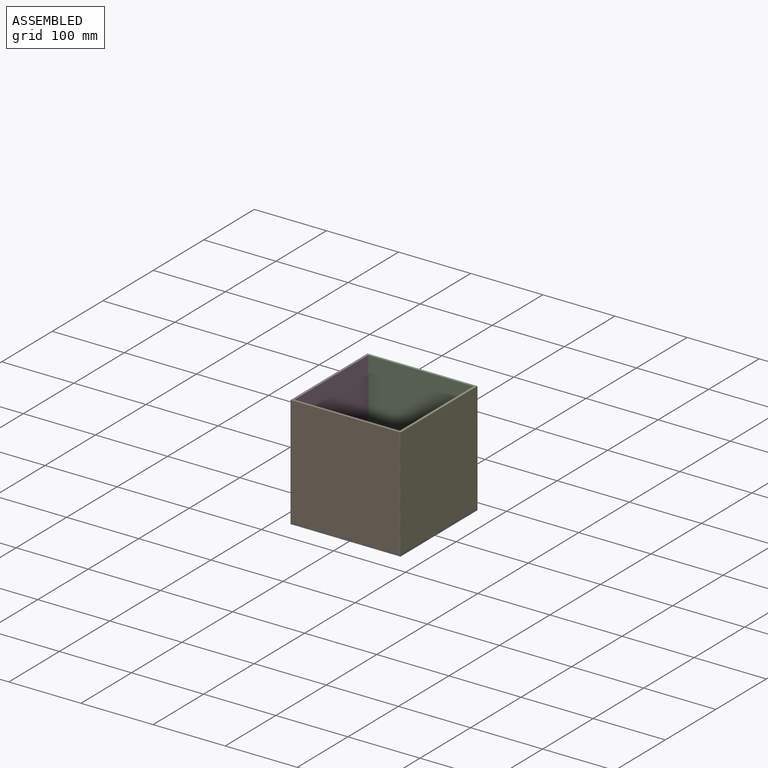
[diagram: assembled view]
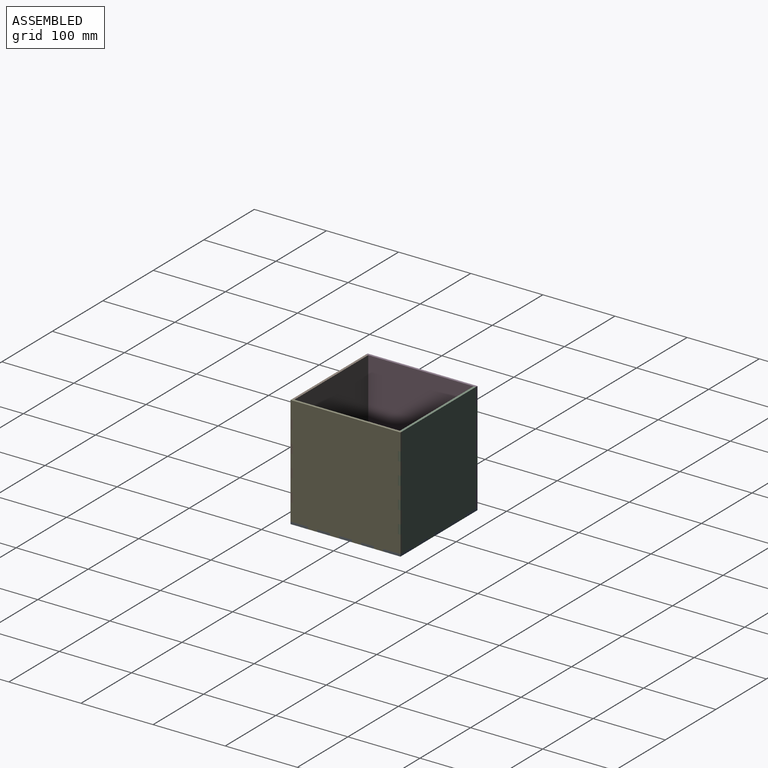
[diagram: assembled view, second angle]
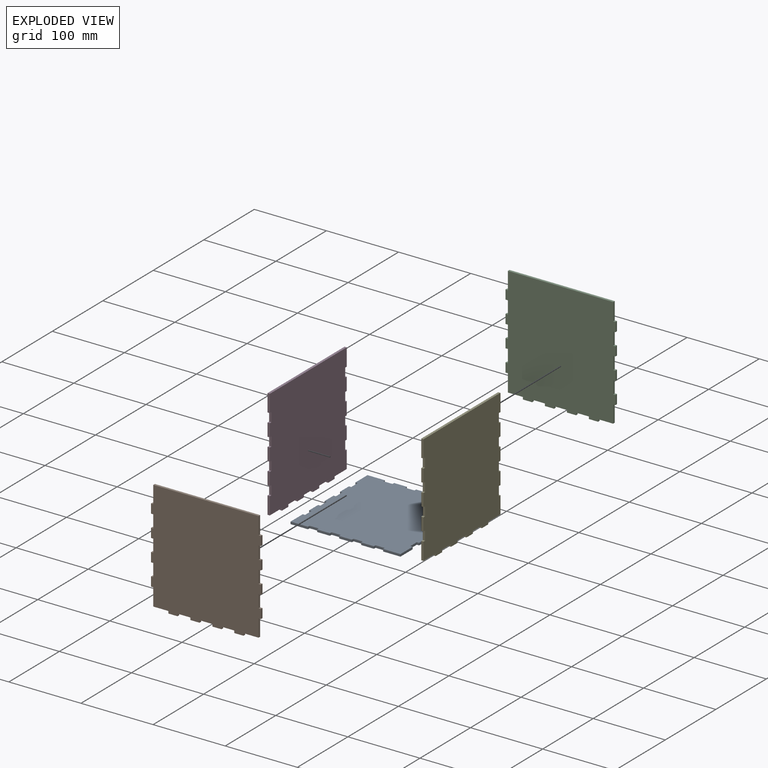
[diagram: exploded view]
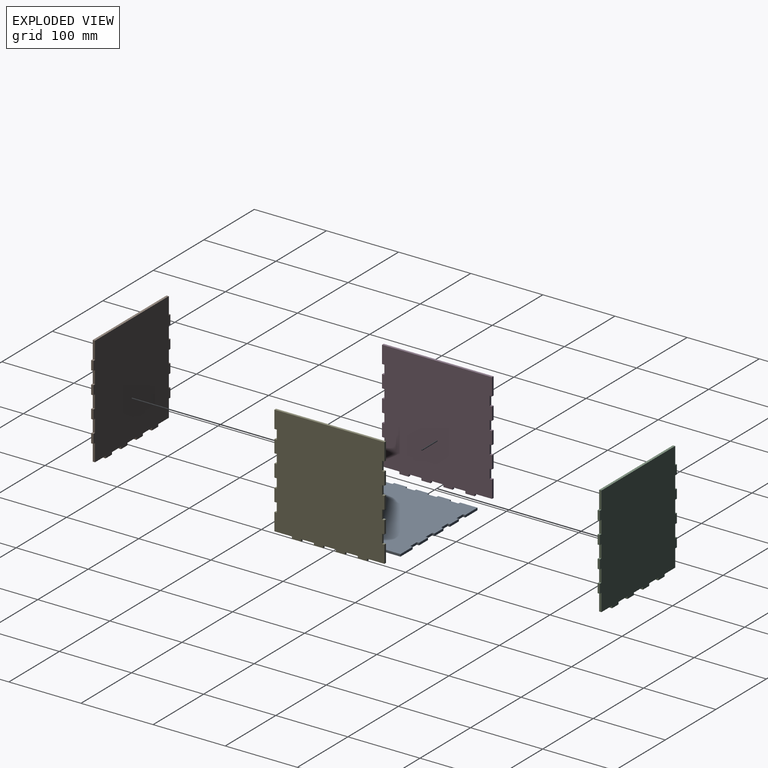
[diagram: exploded view, second angle]
ASSEMBLY  parts=5 mates=14
PART A: 70 faces, bbox 152.4x152.4x3.2 mm
  f0: plane 3.18x3.18mm, normal (0,-1,0), area 10.1mm2, adj f1,f67,f68,f69
  f1: plane 17.78x3.18mm, normal (1,0,0), area 56.5mm2, adj f0,f2,f68,f69
  f2: plane 3.18x3.18mm, normal (0,1,0), area 10.1mm2, adj f1,f3,f68,f69
  f3: plane 12.7x3.18mm, normal (1,0,0), area 40.3mm2, adj f2,f4,f68,f69
  f4: plane 3.18x3.18mm, normal (0,-1,0), area 10.1mm2, adj f3,f5,f68,f69
  f5: plane 17.78x3.18mm, normal (1,0,0), area 56.5mm2, adj f4,f6,f68,f69
  f6: plane 3.18x3.18mm, normal (0,1,0), area 10.1mm2, adj f5,f7,f68,f69
  f7: plane 12.7x3.18mm, normal (1,0,0), area 40.3mm2, adj f6,f8,f68,f69
  f8: plane 3.18x3.18mm, normal (0,-1,0), area 10.1mm2, adj f7,f9,f68,f69
  f9: plane 24.13x3.18mm, normal (1,0,0), area 76.6mm2, adj f8,f10,f68,f69
  f10: plane 24.13x3.18mm, normal (0,1,0), area 76.6mm2, adj f9,f11,f68,f69
  f11: plane 3.18x3.18mm, normal (-1,0,0), area 10.1mm2, adj f10,f12,f68,f69
  f12: plane 12.7x3.18mm, normal (0,1,0), area 40.3mm2, adj f11,f13,f68,f69
  f13: plane 3.18x3.18mm, normal (1,0,0), area 10.1mm2, adj f12,f14,f68,f69
  f14: plane 17.78x3.18mm, normal (0,1,0), area 56.5mm2, adj f13,f15,f68,f69
  f15: plane 3.18x3.18mm, normal (-1,0,0), area 10.1mm2, adj f14,f16,f68,f69
  f16: plane 12.7x3.18mm, normal (0,1,0), area 40.3mm2, adj f15,f17,f68,f69
  f17: plane 3.18x3.18mm, normal (1,0,0), area 10.1mm2, adj f16,f18,f68,f69
  f18: plane 17.78x3.18mm, normal (0,1,0), area 56.5mm2, adj f17,f19,f68,f69
  f19: plane 3.18x3.18mm, normal (-1,0,0), area 10.1mm2, adj f18,f20,f68,f69
  f20: plane 12.7x3.18mm, normal (0,1,0), area 40.3mm2, adj f19,f21,f68,f69
  f21: plane 3.18x3.18mm, normal (1,0,0), area 10.1mm2, adj f20,f22,f68,f69
  f22: plane 17.78x3.18mm, normal (0,1,0), area 56.5mm2, adj f21,f23,f68,f69
  f23: plane 3.18x3.18mm, normal (-1,0,0), area 10.1mm2, adj f22,f24,f68,f69
  f24: plane 12.7x3.18mm, normal (0,1,0), area 40.3mm2, adj f23,f25,f68,f69
  f25: plane 3.18x3.18mm, normal (1,0,0), area 10.1mm2, adj f24,f26,f68,f69
  f26: plane 24.13x3.18mm, normal (0,1,0), area 76.6mm2, adj f25,f27,f68,f69
  f27: plane 24.13x3.18mm, normal (-1,0,0), area 76.6mm2, adj f26,f28,f68,f69
  f28: plane 3.18x3.18mm, normal (0,-1,0), area 10.1mm2, adj f27,f29,f68,f69
  f29: plane 12.7x3.18mm, normal (-1,0,0), area 40.3mm2, adj f28,f30,f68,f69
  f30: plane 3.18x3.18mm, normal (0,1,0), area 10.1mm2, adj f29,f31,f68,f69
  f31: plane 17.78x3.18mm, normal (-1,0,0), area 56.5mm2, adj f30,f32,f68,f69
  f32: plane 3.18x3.18mm, normal (0,-1,0), area 10.1mm2, adj f31,f33,f68,f69
  f33: plane 12.7x3.18mm, normal (-1,0,0), area 40.3mm2, adj f32,f34,f68,f69
  f34: plane 3.18x3.18mm, normal (0,1,0), area 10.1mm2, adj f33,f35,f68,f69
  f35: plane 17.78x3.18mm, normal (-1,0,0), area 56.5mm2, adj f34,f36,f68,f69
  f36: plane 3.18x3.18mm, normal (0,-1,0), area 10.1mm2, adj f35,f37,f68,f69
  f37: plane 12.7x3.18mm, normal (-1,0,0), area 40.3mm2, adj f36,f38,f68,f69
  f38: plane 3.18x3.18mm, normal (0,1,0), area 10.1mm2, adj f37,f39,f68,f69
  f39: plane 17.78x3.18mm, normal (-1,0,0), area 56.5mm2, adj f38,f40,f68,f69
  f40: plane 3.18x3.18mm, normal (0,-1,0), area 10.1mm2, adj f39,f41,f68,f69
  f41: plane 12.7x3.18mm, normal (-1,0,0), area 40.3mm2, adj f40,f42,f68,f69
  f42: plane 3.18x3.18mm, normal (0,1,0), area 10.1mm2, adj f41,f43,f68,f69
  f43: plane 24.13x3.18mm, normal (-1,0,0), area 76.6mm2, adj f42,f44,f68,f69
  f44: plane 24.13x3.18mm, normal (0,-1,0), area 76.6mm2, adj f43,f45,f68,f69
  f45: plane 3.18x3.18mm, normal (1,0,0), area 10.1mm2, adj f44,f46,f68,f69
  f46: plane 12.7x3.18mm, normal (0,-1,0), area 40.3mm2, adj f45,f47,f68,f69
  f47: plane 3.18x3.18mm, normal (-1,0,0), area 10.1mm2, adj f46,f48,f68,f69
  f48: plane 17.78x3.18mm, normal (0,-1,0), area 56.5mm2, adj f47,f49,f68,f69
  f49: plane 3.18x3.18mm, normal (1,0,0), area 10.1mm2, adj f48,f50,f68,f69
  f50: plane 12.7x3.18mm, normal (0,-1,0), area 40.3mm2, adj f49,f51,f68,f69
  f51: plane 3.18x3.18mm, normal (-1,0,0), area 10.1mm2, adj f50,f52,f68,f69
  f52: plane 17.78x3.18mm, normal (0,-1,0), area 56.5mm2, adj f51,f53,f68,f69
  f53: plane 3.18x3.18mm, normal (1,0,0), area 10.1mm2, adj f52,f54,f68,f69
  f54: plane 12.7x3.18mm, normal (0,-1,0), area 40.3mm2, adj f53,f55,f68,f69
  f55: plane 3.18x3.18mm, normal (-1,0,0), area 10.1mm2, adj f54,f56,f68,f69
  f56: plane 17.78x3.18mm, normal (0,-1,0), area 56.5mm2, adj f55,f57,f68,f69
  f57: plane 3.18x3.18mm, normal (1,0,0), area 10.1mm2, adj f56,f58,f68,f69
  f58: plane 12.7x3.18mm, normal (0,-1,0), area 40.3mm2, adj f57,f59,f68,f69
  f59: plane 3.18x3.18mm, normal (-1,0,0), area 10.1mm2, adj f58,f60,f68,f69
  f60: plane 24.13x3.18mm, normal (0,-1,0), area 76.6mm2, adj f59,f61,f68,f69
  f61: plane 24.13x3.18mm, normal (1,0,0), area 76.6mm2, adj f60,f62,f68,f69
  f62: plane 3.18x3.18mm, normal (0,1,0), area 10.1mm2, adj f61,f63,f68,f69
  f63: plane 12.7x3.18mm, normal (1,0,0), area 40.3mm2, adj f62,f64,f68,f69
  f64: plane 3.18x3.18mm, normal (0,-1,0), area 10.1mm2, adj f63,f65,f68,f69
  f65: plane 17.78x3.18mm, normal (1,0,0), area 56.5mm2, adj f64,f66,f68,f69
  f66: plane 3.18x3.18mm, normal (0,1,0), area 10.1mm2, adj f65,f67,f68,f69
  f67: plane 12.7x3.18mm, normal (1,0,0), area 40.3mm2, adj f0,f66,f68,f69
  f68: plane 152.4x152.4mm, normal (0,0,1), area 22580.6mm2, adj f0,f1,f2,f3,f4,f5,f6,f7
  f69: plane 152.4x152.4mm, normal (0,0,-1), area 22580.6mm2, adj f0,f1,f2,f3,f4,f5,f6,f7
PART B: 54 faces, bbox 152.4x155.6x3.2 mm
  f0: plane 17.78x3.18mm, normal (0,-1,0), area 56.5mm2, adj f1,f51,f52,f53
  f1: plane 3.18x3.18mm, normal (-1,0,0), area 10.1mm2, adj f0,f2,f52,f53
  f2: plane 12.7x3.18mm, normal (0,-1,0), area 40.3mm2, adj f1,f3,f52,f53
  f3: plane 3.18x3.18mm, normal (1,0,0), area 10.1mm2, adj f2,f4,f52,f53
  f4: plane 20.96x3.18mm, normal (0,-1,0), area 66.5mm2, adj f3,f5,f52,f53
  f5: plane 24.13x3.18mm, normal (1,0,0), area 76.6mm2, adj f4,f6,f52,f53
  f6: plane 3.18x3.18mm, normal (0,-1,0), area 10.1mm2, adj f5,f7,f52,f53
  f7: plane 12.7x3.18mm, normal (1,0,0), area 40.3mm2, adj f6,f8,f52,f53
  f8: plane 3.18x3.18mm, normal (0,1,0), area 10.1mm2, adj f7,f9,f52,f53
  f9: plane 17.78x3.18mm, normal (1,0,0), area 56.5mm2, adj f8,f10,f52,f53
  f10: plane 3.18x3.18mm, normal (0,-1,0), area 10.1mm2, adj f9,f11,f52,f53
  f11: plane 12.7x3.18mm, normal (1,0,0), area 40.3mm2, adj f10,f12,f52,f53
  f12: plane 3.18x3.18mm, normal (0,1,0), area 10.1mm2, adj f11,f13,f52,f53
  f13: plane 17.78x3.18mm, normal (1,0,0), area 56.5mm2, adj f12,f14,f52,f53
  f14: plane 3.18x3.18mm, normal (0,-1,0), area 10.1mm2, adj f13,f15,f52,f53
  f15: plane 12.7x3.18mm, normal (1,0,0), area 40.3mm2, adj f14,f16,f52,f53
  f16: plane 3.18x3.18mm, normal (0,1,0), area 10.1mm2, adj f15,f17,f52,f53
  f17: plane 17.78x3.18mm, normal (1,0,0), area 56.5mm2, adj f16,f18,f52,f53
  f18: plane 3.18x3.18mm, normal (0,-1,0), area 10.1mm2, adj f17,f19,f52,f53
  f19: plane 12.7x3.18mm, normal (1,0,0), area 40.3mm2, adj f18,f20,f52,f53
  f20: plane 3.18x3.18mm, normal (0,1,0), area 10.1mm2, adj f19,f21,f52,f53
  f21: plane 24.13x3.18mm, normal (1,0,0), area 76.6mm2, adj f20,f22,f52,f53
  f22: plane 146.05x3.18mm, normal (0,1,0), area 463.7mm2, adj f21,f23,f52,f53
  f23: plane 24.13x3.18mm, normal (-1,0,0), area 76.6mm2, adj f22,f24,f52,f53
  f24: plane 3.18x3.18mm, normal (0,1,0), area 10.1mm2, adj f23,f25,f52,f53
  f25: plane 12.7x3.18mm, normal (-1,0,0), area 40.3mm2, adj f24,f26,f52,f53
  f26: plane 3.18x3.18mm, normal (0,-1,0), area 10.1mm2, adj f25,f27,f52,f53
  f27: plane 17.78x3.18mm, normal (-1,0,0), area 56.5mm2, adj f26,f28,f52,f53
  f28: plane 3.18x3.18mm, normal (0,1,0), area 10.1mm2, adj f27,f29,f52,f53
  f29: plane 12.7x3.18mm, normal (-1,0,0), area 40.3mm2, adj f28,f30,f52,f53
  f30: plane 3.18x3.18mm, normal (0,-1,0), area 10.1mm2, adj f29,f31,f52,f53
  f31: plane 17.78x3.18mm, normal (-1,0,0), area 56.5mm2, adj f30,f32,f52,f53
  f32: plane 3.18x3.18mm, normal (0,1,0), area 10.1mm2, adj f31,f33,f52,f53
  f33: plane 12.7x3.18mm, normal (-1,0,0), area 40.3mm2, adj f32,f34,f52,f53
  f34: plane 3.18x3.18mm, normal (0,-1,0), area 10.1mm2, adj f33,f35,f52,f53
  f35: plane 17.78x3.18mm, normal (-1,0,0), area 56.5mm2, adj f34,f36,f52,f53
  f36: plane 3.18x3.18mm, normal (0,1,0), area 10.1mm2, adj f35,f37,f52,f53
  f37: plane 12.7x3.18mm, normal (-1,0,0), area 40.3mm2, adj f36,f38,f52,f53
  f38: plane 3.18x3.18mm, normal (0,-1,0), area 10.1mm2, adj f37,f39,f52,f53
  f39: plane 24.13x3.18mm, normal (-1,0,0), area 76.6mm2, adj f38,f40,f52,f53
  f40: plane 20.96x3.18mm, normal (0,-1,0), area 66.5mm2, adj f39,f41,f52,f53
  f41: plane 3.18x3.18mm, normal (-1,0,0), area 10.1mm2, adj f40,f42,f52,f53
  f42: plane 12.7x3.18mm, normal (0,-1,0), area 40.3mm2, adj f41,f43,f52,f53
  f43: plane 3.18x3.18mm, normal (1,0,0), area 10.1mm2, adj f42,f44,f52,f53
  f44: plane 17.78x3.18mm, normal (0,-1,0), area 56.5mm2, adj f43,f45,f52,f53
  f45: plane 3.18x3.18mm, normal (-1,0,0), area 10.1mm2, adj f44,f46,f52,f53
  f46: plane 12.7x3.18mm, normal (0,-1,0), area 40.3mm2, adj f45,f47,f52,f53
  f47: plane 3.18x3.18mm, normal (1,0,0), area 10.1mm2, adj f46,f48,f52,f53
  f48: plane 17.78x3.18mm, normal (0,-1,0), area 56.5mm2, adj f47,f49,f52,f53
  f49: plane 3.18x3.18mm, normal (-1,0,0), area 10.1mm2, adj f48,f50,f52,f53
  f50: plane 12.7x3.18mm, normal (0,-1,0), area 40.3mm2, adj f49,f51,f52,f53
  f51: plane 3.18x3.18mm, normal (1,0,0), area 10.1mm2, adj f0,f50,f52,f53
  f52: plane 155.58x152.4mm, normal (0,0,1), area 22741.9mm2, adj f0,f1,f2,f3,f4,f5,f6,f7
  f53: plane 155.58x152.4mm, normal (0,0,-1), area 22741.9mm2, adj f0,f1,f2,f3,f4,f5,f6,f7
PART C: same geometry as B
PART D: 54 faces, bbox 152.4x155.6x3.2 mm
  f0: plane 17.78x3.18mm, normal (0,-1,0), area 56.5mm2, adj f1,f51,f52,f53
  f1: plane 3.18x3.18mm, normal (-1,0,0), area 10.1mm2, adj f0,f2,f52,f53
  f2: plane 12.7x3.18mm, normal (0,-1,0), area 40.3mm2, adj f1,f3,f52,f53
  f3: plane 3.18x3.18mm, normal (1,0,0), area 10.1mm2, adj f2,f4,f52,f53
  f4: plane 24.13x3.18mm, normal (0,-1,0), area 76.6mm2, adj f3,f5,f52,f53
  f5: plane 24.13x3.18mm, normal (1,0,0), area 76.6mm2, adj f4,f6,f52,f53
  f6: plane 3.18x3.18mm, normal (0,1,0), area 10.1mm2, adj f5,f7,f52,f53
  f7: plane 12.7x3.18mm, normal (1,0,0), area 40.3mm2, adj f6,f8,f52,f53
  f8: plane 3.18x3.18mm, normal (0,-1,0), area 10.1mm2, adj f7,f9,f52,f53
  f9: plane 17.78x3.18mm, normal (1,0,0), area 56.5mm2, adj f8,f10,f52,f53
  f10: plane 3.18x3.18mm, normal (0,1,0), area 10.1mm2, adj f9,f11,f52,f53
  f11: plane 12.7x3.18mm, normal (1,0,0), area 40.3mm2, adj f10,f12,f52,f53
  f12: plane 3.18x3.18mm, normal (0,-1,0), area 10.1mm2, adj f11,f13,f52,f53
  f13: plane 17.78x3.18mm, normal (1,0,0), area 56.5mm2, adj f12,f14,f52,f53
  f14: plane 3.18x3.18mm, normal (0,1,0), area 10.1mm2, adj f13,f15,f52,f53
  f15: plane 12.7x3.18mm, normal (1,0,0), area 40.3mm2, adj f14,f16,f52,f53
  f16: plane 3.18x3.18mm, normal (0,-1,0), area 10.1mm2, adj f15,f17,f52,f53
  f17: plane 17.78x3.18mm, normal (1,0,0), area 56.5mm2, adj f16,f18,f52,f53
  f18: plane 3.18x3.18mm, normal (0,1,0), area 10.1mm2, adj f17,f19,f52,f53
  f19: plane 12.7x3.18mm, normal (1,0,0), area 40.3mm2, adj f18,f20,f52,f53
  f20: plane 3.18x3.18mm, normal (0,-1,0), area 10.1mm2, adj f19,f21,f52,f53
  f21: plane 24.13x3.18mm, normal (1,0,0), area 76.6mm2, adj f20,f22,f52,f53
  f22: plane 152.4x3.18mm, normal (0,1,0), area 483.9mm2, adj f21,f23,f52,f53
  f23: plane 24.13x3.18mm, normal (-1,0,0), area 76.6mm2, adj f22,f24,f52,f53
  f24: plane 3.18x3.18mm, normal (0,-1,0), area 10.1mm2, adj f23,f25,f52,f53
  f25: plane 12.7x3.18mm, normal (-1,0,0), area 40.3mm2, adj f24,f26,f52,f53
  f26: plane 3.18x3.18mm, normal (0,1,0), area 10.1mm2, adj f25,f27,f52,f53
  f27: plane 17.78x3.18mm, normal (-1,0,0), area 56.5mm2, adj f26,f28,f52,f53
  f28: plane 3.18x3.18mm, normal (0,-1,0), area 10.1mm2, adj f27,f29,f52,f53
  f29: plane 12.7x3.18mm, normal (-1,0,0), area 40.3mm2, adj f28,f30,f52,f53
  f30: plane 3.18x3.18mm, normal (0,1,0), area 10.1mm2, adj f29,f31,f52,f53
  f31: plane 17.78x3.18mm, normal (-1,0,0), area 56.5mm2, adj f30,f32,f52,f53
  f32: plane 3.18x3.18mm, normal (0,-1,0), area 10.1mm2, adj f31,f33,f52,f53
  f33: plane 12.7x3.18mm, normal (-1,0,0), area 40.3mm2, adj f32,f34,f52,f53
  f34: plane 3.18x3.18mm, normal (0,1,0), area 10.1mm2, adj f33,f35,f52,f53
  f35: plane 17.78x3.18mm, normal (-1,0,0), area 56.5mm2, adj f34,f36,f52,f53
  f36: plane 3.18x3.18mm, normal (0,-1,0), area 10.1mm2, adj f35,f37,f52,f53
  f37: plane 12.7x3.18mm, normal (-1,0,0), area 40.3mm2, adj f36,f38,f52,f53
  f38: plane 3.18x3.18mm, normal (0,1,0), area 10.1mm2, adj f37,f39,f52,f53
  f39: plane 24.13x3.18mm, normal (-1,0,0), area 76.6mm2, adj f38,f40,f52,f53
  f40: plane 24.13x3.18mm, normal (0,-1,0), area 76.6mm2, adj f39,f41,f52,f53
  f41: plane 3.18x3.18mm, normal (-1,0,0), area 10.1mm2, adj f40,f42,f52,f53
  f42: plane 12.7x3.18mm, normal (0,-1,0), area 40.3mm2, adj f41,f43,f52,f53
  f43: plane 3.18x3.18mm, normal (1,0,0), area 10.1mm2, adj f42,f44,f52,f53
  f44: plane 17.78x3.18mm, normal (0,-1,0), area 56.5mm2, adj f43,f45,f52,f53
  f45: plane 3.18x3.18mm, normal (-1,0,0), area 10.1mm2, adj f44,f46,f52,f53
  f46: plane 12.7x3.18mm, normal (0,-1,0), area 40.3mm2, adj f45,f47,f52,f53
  f47: plane 3.18x3.18mm, normal (1,0,0), area 10.1mm2, adj f46,f48,f52,f53
  f48: plane 17.78x3.18mm, normal (0,-1,0), area 56.5mm2, adj f47,f49,f52,f53
  f49: plane 3.18x3.18mm, normal (-1,0,0), area 10.1mm2, adj f48,f50,f52,f53
  f50: plane 12.7x3.18mm, normal (0,-1,0), area 40.3mm2, adj f49,f51,f52,f53
  f51: plane 3.18x3.18mm, normal (1,0,0), area 10.1mm2, adj f0,f50,f52,f53
  f52: plane 155.58x152.4mm, normal (0,0,1), area 23064.5mm2, adj f0,f1,f2,f3,f4,f5,f6,f7
  f53: plane 155.58x152.4mm, normal (0,0,-1), area 23064.5mm2, adj f0,f1,f2,f3,f4,f5,f6,f7
PART E: same geometry as D
PLACE A rot(axis=(0,0,-1),180deg) t=(0,0,-1.59)mm
PLACE B rot(axis=(0,-0.71,-0.71),180deg) t=(0,-74.61,76.2)mm
PLACE C rot(axis=(0,-0.71,-0.71),180deg) t=(0,74.61,76.2)mm
PLACE D rot(axis=(0.58,0.58,0.58),120deg) t=(-74.61,0,75.52)mm
PLACE E rot(axis=(0.58,-0.58,-0.58),120deg) t=(74.61,0,75.52)mm
MATE planar A.f60 <-> C.f52  axis (0,1,0) through (-64.13,76.2,-1.59)mm
MATE planar B.f46 <-> A.f69  axis (0,0,-1) through (15.24,-74.61,-3.18)mm
MATE planar E.f53 <-> C.f37  axis (1,0,0) through (76.2,0,75.66)mm
MATE planar D.f23 <-> B.f53  axis (0,-1,0) through (-74.61,-76.2,140.34)mm
MATE planar A.f68 <-> B.f4  axis (0,0,1) through (0,0,0)mm
MATE planar C.f41 <-> A.f45  axis (1,0,0) through (52.07,76.2,-1.59)mm
MATE planar D.f22 <-> B.f22  axis (0,0,1) through (-74.61,0,152.4)mm
MATE planar D.f52 <-> A.f7  axis (1,0,0) through (-73.03,-45.72,-3.17)mm
MATE planar E.f52 <-> C.f35  axis (-1,0,0) through (73.02,0,75.66)mm
MATE planar C.f40 <-> A.f68  axis (0,0,-1) through (62.55,74.61,0)mm
MATE planar B.f52 <-> A.f12  axis (0,1,0) through (-45.72,-73.03,-3.17)mm
MATE planar E.f40 <-> A.f68  axis (0,0,-1) through (74.61,64.13,0)mm
MATE planar E.f5 <-> B.f53  axis (0,-1,0) through (74.61,-76.2,12.07)mm
MATE planar A.f13 <-> B.f1  axis (-1,0,0) through (-39.37,-74.61,-1.59)mm
